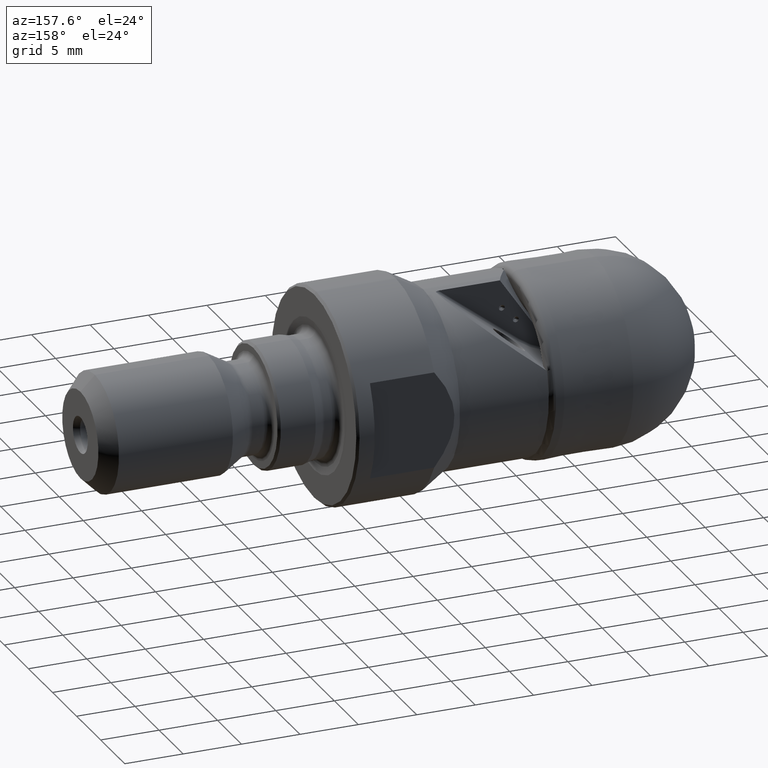
[diagram: clean part render]
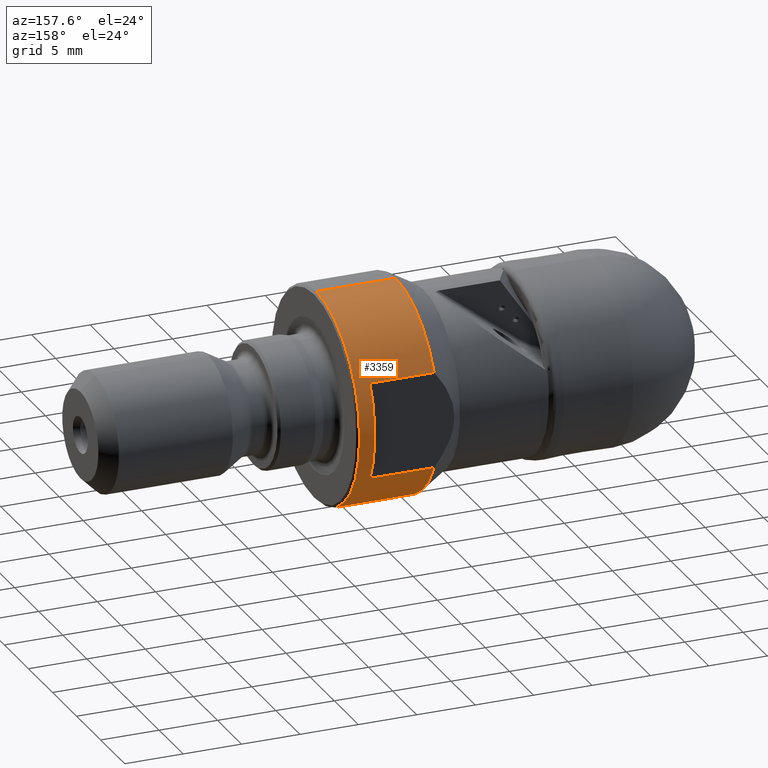
[diagram: same view with one face highlighted and labeled with its STEP entity id]
A machine part, auxiliary view. The second image highlights one B-rep face of the part: STEP entity #3359.
In plain terms, the highlighted cylindrical surface (partial cylindrical patch) has radius 9 mm, axis along (-1, 0, 0).
Its self-contained STEP definition (entity closure, byte-faithful):
#4 = CYLINDRICAL_SURFACE ( 'NONE', #3177, 9.000000000000000000 ) ;
#73 = CIRCLE ( 'NONE', #2697, 9.000000000000000000 ) ;
#76 = DIRECTION ( 'NONE',  ( -1.000000000000000000, 0.0000000000000000000, 0.0000000000000000000 ) ) ;
#124 = VECTOR ( 'NONE', #76, 1000.000000000000000 ) ;
#151 = LINE ( 'NONE', #2918, #3860 ) ;
#163 = ORIENTED_EDGE ( 'NONE', *, *, #3334, .F. ) ;
#308 = DIRECTION ( 'NONE',  ( 0.0000000000000000000, 0.0000000000000000000, -1.000000000000000000 ) ) ;
#338 = CARTESIAN_POINT ( 'NONE',  ( -4.762142644779060241, 1.102182119232617714E-15, -9.000000000000000000 ) ) ;
#378 = LINE ( 'NONE', #338, #124 ) ;
#420 = EDGE_CURVE ( 'NONE', #1670, #648, #73, .T. ) ;
#473 = ORIENTED_EDGE ( 'NONE', *, *, #420, .T. ) ;
#521 = CIRCLE ( 'NONE', #1535, 9.000000000000000000 ) ;
#648 = VERTEX_POINT ( 'NONE', #2070 ) ;
#661 = DIRECTION ( 'NONE',  ( 1.000000000000000000, 0.0000000000000000000, 0.0000000000000000000 ) ) ;
#722 = DIRECTION ( 'NONE',  ( -1.000000000000000000, 0.0000000000000000000, 0.0000000000000000000 ) ) ;
#725 = VERTEX_POINT ( 'NONE', #1778 ) ;
#929 = VECTOR ( 'NONE', #2241, 1000.000000000000000 ) ;
#1025 = VERTEX_POINT ( 'NONE', #1150 ) ;
#1045 = DIRECTION ( 'NONE',  ( 1.000000000000000000, -0.0000000000000000000, -0.0000000000000000000 ) ) ;
#1079 = ORIENTED_EDGE ( 'NONE', *, *, #1563, .T. ) ;
#1150 = CARTESIAN_POINT ( 'NONE',  ( 30.81688200000000322, 8.000000000000000000, 4.123105625617658809 ) ) ;
#1287 = DIRECTION ( 'NONE',  ( 0.0000000000000000000, 0.0000000000000000000, 1.000000000000000000 ) ) ;
#1349 = LINE ( 'NONE', #2581, #3402 ) ;
#1354 = DIRECTION ( 'NONE',  ( -1.000000000000000000, 0.0000000000000000000, 0.0000000000000000000 ) ) ;
#1368 = CARTESIAN_POINT ( 'NONE',  ( 25.31688199999999966, 0.0000000000000000000, -9.000000000000000000 ) ) ;
#1389 = EDGE_CURVE ( 'NONE', #648, #2564, #378, .T. ) ;
#1407 = VERTEX_POINT ( 'NONE', #1901 ) ;
#1431 = CIRCLE ( 'NONE', #2598, 9.000000000000000000 ) ;
#1478 = DIRECTION ( 'NONE',  ( 0.0000000000000000000, 0.0000000000000000000, 1.000000000000000000 ) ) ;
#1535 = AXIS2_PLACEMENT_3D ( 'NONE', #3699, #661, #308 ) ;
#1538 = DIRECTION ( 'NONE',  ( -1.000000000000000000, 0.0000000000000000000, 0.0000000000000000000 ) ) ;
#1563 = EDGE_CURVE ( 'NONE', #1407, #725, #1349, .T. ) ;
#1585 = ORIENTED_EDGE ( 'NONE', *, *, #2912, .T. ) ;
#1670 = VERTEX_POINT ( 'NONE', #1728 ) ;
#1705 = ORIENTED_EDGE ( 'NONE', *, *, #1389, .T. ) ;
#1722 = EDGE_LOOP ( 'NONE', ( #473, #1705, #2504, #1079, #3128, #1585, #2156, #163 ) ) ;
#1728 = CARTESIAN_POINT ( 'NONE',  ( 32.11688199999999682, 0.0000000000000000000, 9.000000000000000000 ) ) ;
#1754 = AXIS2_PLACEMENT_3D ( 'NONE', #2569, #722, #1287 ) ;
#1778 = CARTESIAN_POINT ( 'NONE',  ( 30.81688200000000322, 8.000000000000000000, -4.123105625617659697 ) ) ;
#1898 = CARTESIAN_POINT ( 'NONE',  ( -4.762142644779060241, 8.000000000000000000, 4.123105625617659697 ) ) ;
#1901 = CARTESIAN_POINT ( 'NONE',  ( 25.31688199999999966, 8.000000000000000000, -4.123105625617659697 ) ) ;
#1906 = DIRECTION ( 'NONE',  ( 0.0000000000000000000, 0.0000000000000000000, 1.000000000000000000 ) ) ;
#1908 = CARTESIAN_POINT ( 'NONE',  ( 25.31688199999999966, 0.0000000000000000000, 0.0000000000000000000 ) ) ;
#1923 = EDGE_CURVE ( 'NONE', #725, #1025, #521, .T. ) ;
#2070 = CARTESIAN_POINT ( 'NONE',  ( 32.11688199999999682, 1.102182119232617714E-15, -9.000000000000000000 ) ) ;
#2089 = CARTESIAN_POINT ( 'NONE',  ( 25.31688199999999966, 8.000000000000000000, 4.123105625617660586 ) ) ;
#2156 = ORIENTED_EDGE ( 'NONE', *, *, #2169, .F. ) ;
#2169 = EDGE_CURVE ( 'NONE', #3701, #3934, #1431, .T. ) ;
#2241 = DIRECTION ( 'NONE',  ( -1.000000000000000000, 0.0000000000000000000, 0.0000000000000000000 ) ) ;
#2288 = EDGE_CURVE ( 'NONE', #1407, #2564, #2658, .T. ) ;
#2501 = DIRECTION ( 'NONE',  ( 0.0000000000000000000, 0.0000000000000000000, 1.000000000000000000 ) ) ;
#2504 = ORIENTED_EDGE ( 'NONE', *, *, #2288, .F. ) ;
#2564 = VERTEX_POINT ( 'NONE', #1368 ) ;
#2569 = CARTESIAN_POINT ( 'NONE',  ( 25.31688199999999966, 0.0000000000000000000, 0.0000000000000000000 ) ) ;
#2581 = CARTESIAN_POINT ( 'NONE',  ( -4.762142644779060241, 8.000000000000000000, -4.123105625617659697 ) ) ;
#2598 = AXIS2_PLACEMENT_3D ( 'NONE', #1908, #1538, #2501 ) ;
#2658 = CIRCLE ( 'NONE', #1754, 9.000000000000000000 ) ;
#2697 = AXIS2_PLACEMENT_3D ( 'NONE', #2719, #3331, #1478 ) ;
#2719 = CARTESIAN_POINT ( 'NONE',  ( 32.11688199999999682, 0.0000000000000000000, 0.0000000000000000000 ) ) ;
#2815 = FACE_OUTER_BOUND ( 'NONE', #1722, .T. ) ;
#2832 = DIRECTION ( 'NONE',  ( -1.000000000000000000, 0.0000000000000000000, 0.0000000000000000000 ) ) ;
#2872 = LINE ( 'NONE', #1898, #929 ) ;
#2912 = EDGE_CURVE ( 'NONE', #1025, #3934, #2872, .T. ) ;
#2918 = CARTESIAN_POINT ( 'NONE',  ( -4.762142644779060241, 0.0000000000000000000, 9.000000000000000000 ) ) ;
#3128 = ORIENTED_EDGE ( 'NONE', *, *, #1923, .T. ) ;
#3177 = AXIS2_PLACEMENT_3D ( 'NONE', #3443, #2832, #1906 ) ;
#3254 = CARTESIAN_POINT ( 'NONE',  ( 25.31688199999999966, 1.102182119232617714E-15, 9.000000000000000000 ) ) ;
#3331 = DIRECTION ( 'NONE',  ( -1.000000000000000000, 0.0000000000000000000, 0.0000000000000000000 ) ) ;
#3334 = EDGE_CURVE ( 'NONE', #1670, #3701, #151, .T. ) ;
#3359 = ADVANCED_FACE ( 'NONE', ( #2815 ), #4, .T. ) ;
#3402 = VECTOR ( 'NONE', #1045, 1000.000000000000000 ) ;
#3443 = CARTESIAN_POINT ( 'NONE',  ( -4.762142644779060241, 0.0000000000000000000, 0.0000000000000000000 ) ) ;
#3699 = CARTESIAN_POINT ( 'NONE',  ( 30.81688200000000322, 0.0000000000000000000, 0.0000000000000000000 ) ) ;
#3701 = VERTEX_POINT ( 'NONE', #3254 ) ;
#3860 = VECTOR ( 'NONE', #1354, 1000.000000000000000 ) ;
#3934 = VERTEX_POINT ( 'NONE', #2089 ) ;